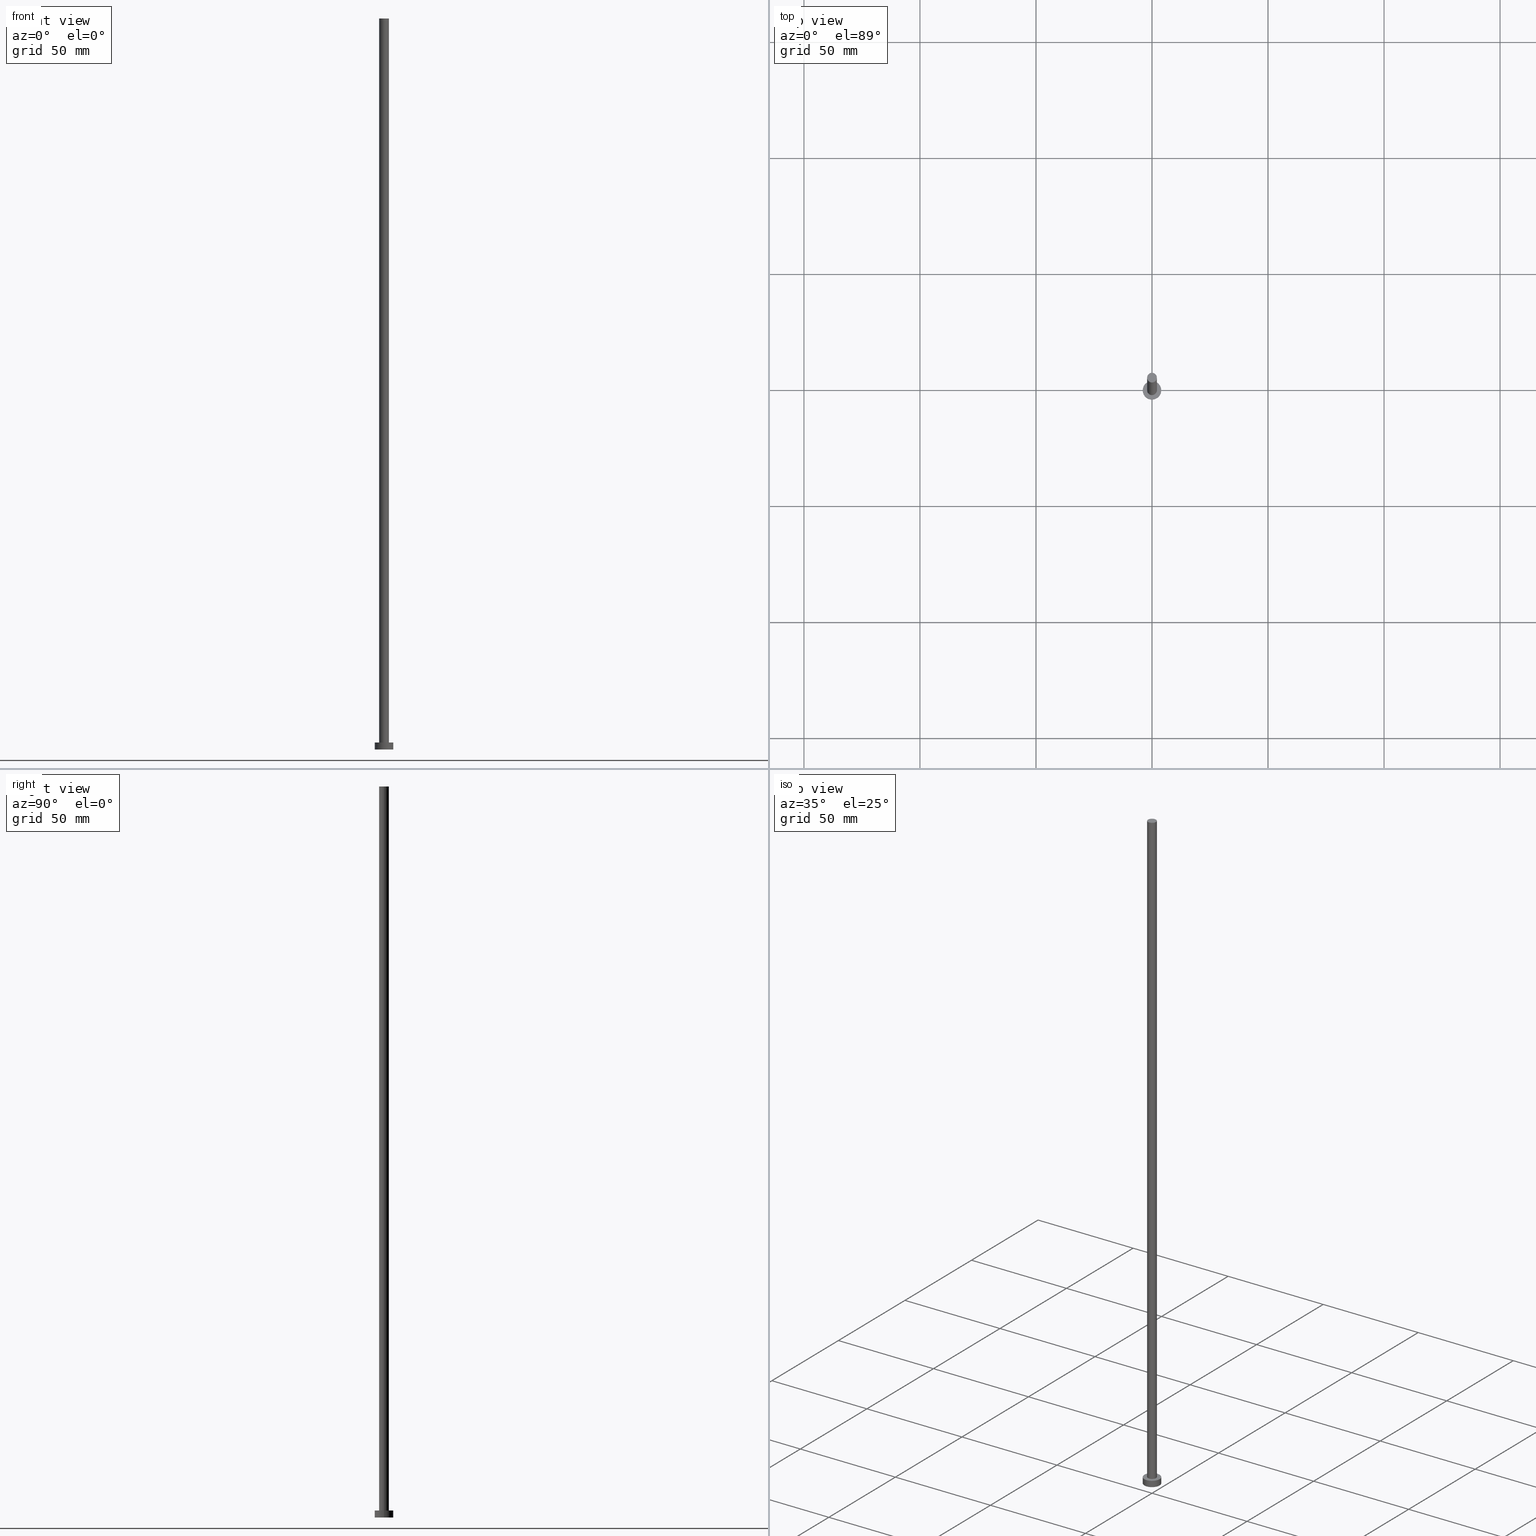
[diagram: canonical four-view strip — front | top / right | iso, engineering-drawing reading convention]
A machine part, canonical four-view strip (front | top / right | iso — engineering-drawing reading convention). The complete STEP part file that produces these views, byte-faithful:
ISO-10303-21;
HEADER;
FILE_DESCRIPTION (( 'STEP AP203' ),
    '1' );
FILE_NAME ('7c55.STEP',
    '2023-02-12T12:36:27',
    ( '' ),
    ( '' ),
    'SwSTEP 2.0',
    'SolidWorks 2019',
    '' );
FILE_SCHEMA (( 'CONFIG_CONTROL_DESIGN' ));
ENDSEC;

DATA;
#1 = CARTESIAN_POINT ( 'NONE',  ( 0.000000000000000000, 0.000000000000000000, 315.0000000000000000 ) ) ;
#2 = DIRECTION ( 'NONE',  ( -1.000000000000000000, 0.000000000000000000, 0.000000000000000000 ) ) ;
#3 = AXIS2_PLACEMENT_3D ( 'NONE', #19, #181, #69 ) ;
#4 = CARTESIAN_POINT ( 'NONE',  ( 0.000000000000000000, 0.000000000000000000, 0.000000000000000000 ) ) ;
#5 = FACE_OUTER_BOUND ( 'NONE', #53, .T. ) ;
#6 = CC_DESIGN_SECURITY_CLASSIFICATION ( #253, ( #199 ) ) ;
#7 = CIRCLE ( 'NONE', #28, 2.100000000000000089 ) ;
#8 = EDGE_CURVE ( 'NONE', #78, #57, #192, .T. ) ;
#9 = APPLICATION_PROTOCOL_DEFINITION ( 'international standard', 'config_control_design', 1994, #152 ) ;
#10 = DIRECTION ( 'NONE',  ( 1.000000000000000000, 0.000000000000000000, 0.000000000000000000 ) ) ;
#11 = ORIENTED_EDGE ( 'NONE', *, *, #158, .F. ) ;
#12 = APPROVAL ( #52, 'NEUR�EN�' ) ;
#13 = EDGE_LOOP ( 'NONE', ( #98, #241 ) ) ;
#14 = VERTEX_POINT ( 'NONE', #228 ) ;
#15 = FACE_BOUND ( 'NONE', #13, .T. ) ;
#16 = CALENDAR_DATE ( 2023, 12, 2 ) ;
#17 = CYLINDRICAL_SURFACE ( 'NONE', #99, 4.000000000000000000 ) ;
#18 = DIRECTION ( 'NONE',  ( -1.000000000000000000, 0.000000000000000000, 0.000000000000000000 ) ) ;
#19 = CARTESIAN_POINT ( 'NONE',  ( 0.000000000000000000, 0.000000000000000000, 3.000000000000000000 ) ) ;
#20 = PLANE ( 'NONE',  #75 ) ;
#21 = CLOSED_SHELL ( 'NONE', ( #237, #138, #106, #92, #201, #144, #163 ) ) ;
#22 = LOCAL_TIME ( 13, 36, 27.00000000000000000, #94 ) ;
#23 = CARTESIAN_POINT ( 'NONE',  ( 4.000000000000000000, 4.898587196589412829E-16, 3.000000000000000000 ) ) ;
#24 = CC_DESIGN_PERSON_AND_ORGANIZATION_ASSIGNMENT ( #38, #245, ( #125 ) ) ;
#25 = COORDINATED_UNIVERSAL_TIME_OFFSET ( 1, 0, .AHEAD. ) ;
#26 = ORIENTED_EDGE ( 'NONE', *, *, #155, .T. ) ;
#27 = UNCERTAINTY_MEASURE_WITH_UNIT (LENGTH_MEASURE( 1.000000000000000082E-05 ), #220, 'distance_accuracy_value', 'NONE');
#28 = AXIS2_PLACEMENT_3D ( 'NONE', #50, #46, #86 ) ;
#29 = AXIS2_PLACEMENT_3D ( 'NONE', #232, #238, #89 ) ;
#30 = ORIENTED_EDGE ( 'NONE', *, *, #158, .T. ) ;
#31 = APPROVAL ( #34, 'NEUR�EN�' ) ;
#32 = PERSON_AND_ORGANIZATION ( #74, #115 ) ;
#33 = LINE ( 'NONE', #108, #45 ) ;
#34 = APPROVAL_STATUS ( 'not_yet_approved' ) ;
#35 = VERTEX_POINT ( 'NONE', #132 ) ;
#36 = LOCAL_TIME ( 13, 36, 27.00000000000000000, #156 ) ;
#37 = CIRCLE ( 'NONE', #79, 4.000000000000000000 ) ;
#38 = PERSON_AND_ORGANIZATION ( #74, #115 ) ;
#39 = CARTESIAN_POINT ( 'NONE',  ( -2.100000000000000089, 0.000000000000000000, 3.000000000000000000 ) ) ;
#40 = PERSON_AND_ORGANIZATION ( #74, #115 ) ;
#41 = DIRECTION ( 'NONE',  ( -0.000000000000000000, -0.000000000000000000, -1.000000000000000000 ) ) ;
#42 = PERSON_AND_ORGANIZATION ( #74, #115 ) ;
#43 = DIRECTION ( 'NONE',  ( 1.000000000000000000, 0.000000000000000000, 0.000000000000000000 ) ) ;
#44 = CIRCLE ( 'NONE', #187, 2.100000000000000089 ) ;
#45 = VECTOR ( 'NONE', #191, 1000.000000000000000 ) ;
#46 = DIRECTION ( 'NONE',  ( 0.000000000000000000, 0.000000000000000000, 1.000000000000000000 ) ) ;
#47 = CYLINDRICAL_SURFACE ( 'NONE', #145, 2.100000000000000089 ) ;
#48 = DIRECTION ( 'NONE',  ( 1.000000000000000000, 0.000000000000000000, 0.000000000000000000 ) ) ;
#49 = EDGE_CURVE ( 'NONE', #14, #225, #110, .T. ) ;
#50 = CARTESIAN_POINT ( 'NONE',  ( 0.000000000000000000, 0.000000000000000000, 3.000000000000000000 ) ) ;
#51 = EDGE_LOOP ( 'NONE', ( #54, #30 ) ) ;
#52 = APPROVAL_STATUS ( 'not_yet_approved' ) ;
#53 = EDGE_LOOP ( 'NONE', ( #193, #213, #177, #190 ) ) ;
#54 = ORIENTED_EDGE ( 'NONE', *, *, #189, .T. ) ;
#55 = ORIENTED_EDGE ( 'NONE', *, *, #249, .T. ) ;
#56 = ORIENTED_EDGE ( 'NONE', *, *, #102, .F. ) ;
#57 = VERTEX_POINT ( 'NONE', #39 ) ;
#58 = CC_DESIGN_APPROVAL ( #31, ( #199 ) ) ;
#59 = AXIS2_PLACEMENT_3D ( 'NONE', #128, #208, #212 ) ;
#60 = PERSON_AND_ORGANIZATION_ROLE ( 'creator' ) ;
#61 = CC_DESIGN_APPROVAL ( #117, ( #246 ) ) ;
#62 = ADVANCED_BREP_SHAPE_REPRESENTATION ( '7c55', ( #159, #105 ), #167 ) ;
#63 = ORIENTED_EDGE ( 'NONE', *, *, #186, .F. ) ;
#64 = PERSON_AND_ORGANIZATION ( #74, #115 ) ;
#65 = CARTESIAN_POINT ( 'NONE',  ( 4.000000000000000000, 4.898587196589412829E-16, 3.000000000000000000 ) ) ;
#66 = CC_DESIGN_PERSON_AND_ORGANIZATION_ASSIGNMENT ( #32, #60, ( #246 ) ) ;
#67 = AXIS2_PLACEMENT_3D ( 'NONE', #119, #195, #43 ) ;
#68 = CIRCLE ( 'NONE', #67, 4.000000000000000000 ) ;
#69 = DIRECTION ( 'NONE',  ( 1.000000000000000000, 0.000000000000000000, -0.000000000000000000 ) ) ;
#70 = DIRECTION ( 'NONE',  ( -0.000000000000000000, -0.000000000000000000, -1.000000000000000000 ) ) ;
#71 = EDGE_CURVE ( 'NONE', #35, #109, #33, .T. ) ;
#72 = DIRECTION ( 'NONE',  ( 1.000000000000000000, 0.000000000000000000, -0.000000000000000000 ) ) ;
#73 = APPROVAL_DATE_TIME ( #168, #12 ) ;
#74 = PERSON ( 'NEUR�EN�', 'NEUR�EN�', 'NEUR�EN�', ('NEUR�EN�'), ('NEUR�EN�'), ('NEUR�EN�') ) ;
#75 = AXIS2_PLACEMENT_3D ( 'NONE', #84, #164, #236 ) ;
#76 = EDGE_LOOP ( 'NONE', ( #227, #207, #26, #83 ) ) ;
#77 = APPROVAL_ROLE ( '' ) ;
#78 = VERTEX_POINT ( 'NONE', #112 ) ;
#79 = AXIS2_PLACEMENT_3D ( 'NONE', #196, #114, #143 ) ;
#80 = COORDINATED_UNIVERSAL_TIME_OFFSET ( 1, 0, .AHEAD. ) ;
#81 = DATE_AND_TIME ( #172, #205 ) ;
#82 = PERSON_AND_ORGANIZATION_ROLE ( 'design_supplier' ) ;
#83 = ORIENTED_EDGE ( 'NONE', *, *, #186, .T. ) ;
#84 = CARTESIAN_POINT ( 'NONE',  ( 0.000000000000000000, 0.000000000000000000, 0.000000000000000000 ) ) ;
#85 = DIRECTION ( 'NONE',  ( 0.000000000000000000, 0.000000000000000000, 1.000000000000000000 ) ) ;
#86 = DIRECTION ( 'NONE',  ( 1.000000000000000000, 0.000000000000000000, 0.000000000000000000 ) ) ;
#87 = DIRECTION ( 'NONE',  ( 1.000000000000000000, 0.000000000000000000, 0.000000000000000000 ) ) ;
#88 = CARTESIAN_POINT ( 'NONE',  ( 0.000000000000000000, 0.000000000000000000, 3.000000000000000000 ) ) ;
#89 = DIRECTION ( 'NONE',  ( -1.000000000000000000, 0.000000000000000000, 0.000000000000000000 ) ) ;
#90 = DIRECTION ( 'NONE',  ( 0.000000000000000000, 0.000000000000000000, 1.000000000000000000 ) ) ;
#91 = ORIENTED_EDGE ( 'NONE', *, *, #49, .T. ) ;
#92 = ADVANCED_FACE ( 'NONE', ( #15, #96 ), #93, .T. ) ;
#93 = PLANE ( 'NONE',  #3 ) ;
#94 = COORDINATED_UNIVERSAL_TIME_OFFSET ( 1, 0, .AHEAD. ) ;
#95 = DATE_AND_TIME ( #178, #22 ) ;
#96 = FACE_OUTER_BOUND ( 'NONE', #248, .T. ) ;
#97 = DATE_AND_TIME ( #16, #36 ) ;
#98 = ORIENTED_EDGE ( 'NONE', *, *, #131, .F. ) ;
#99 = AXIS2_PLACEMENT_3D ( 'NONE', #216, #101, #198 ) ;
#100 = DIRECTION ( 'NONE',  ( -0.000000000000000000, -0.000000000000000000, -1.000000000000000000 ) ) ;
#101 = DIRECTION ( 'NONE',  ( -0.000000000000000000, -0.000000000000000000, -1.000000000000000000 ) ) ;
#102 = EDGE_CURVE ( 'NONE', #225, #14, #68, .T. ) ;
#103 = CYLINDRICAL_SURFACE ( 'NONE', #203, 4.000000000000000000 ) ;
#104 = DIRECTION ( 'NONE',  ( 0.000000000000000000, 0.000000000000000000, 1.000000000000000000 ) ) ;
#105 = AXIS2_PLACEMENT_3D ( 'NONE', #222, #90, #10 ) ;
#106 = ADVANCED_FACE ( 'NONE', ( #185 ), #103, .T. ) ;
#107 = DATE_AND_TIME ( #206, #123 ) ;
#108 = CARTESIAN_POINT ( 'NONE',  ( 2.100000000000000089, 2.571758278209441957E-16, 315.0000000000000000 ) ) ;
#109 = VERTEX_POINT ( 'NONE', #142 ) ;
#110 = CIRCLE ( 'NONE', #59, 4.000000000000000000 ) ;
#111 = APPROVAL_STATUS ( 'not_yet_approved' ) ;
#112 = CARTESIAN_POINT ( 'NONE',  ( -2.100000000000000089, 0.000000000000000000, 315.0000000000000000 ) ) ;
#113 = PERSON_AND_ORGANIZATION ( #74, #115 ) ;
#114 = DIRECTION ( 'NONE',  ( 0.000000000000000000, 0.000000000000000000, 1.000000000000000000 ) ) ;
#115 = ORGANIZATION ( 'NEUR�EN�', 'NEUR�EN�', '' ) ;
#116 = LINE ( 'NONE', #234, #127 ) ;
#117 = APPROVAL ( #111, 'NEUR�EN�' ) ;
#118 = FACE_OUTER_BOUND ( 'NONE', #51, .T. ) ;
#119 = CARTESIAN_POINT ( 'NONE',  ( 0.000000000000000000, 0.000000000000000000, 3.000000000000000000 ) ) ;
#120 = AXIS2_PLACEMENT_3D ( 'NONE', #88, #104, #221 ) ;
#121 = DIRECTION ( 'NONE',  ( 0.000000000000000000, 0.000000000000000000, 1.000000000000000000 ) ) ;
#122 =( NAMED_UNIT ( * ) PLANE_ANGLE_UNIT ( ) SI_UNIT ( $, .RADIAN. ) );
#123 = LOCAL_TIME ( 13, 36, 27.00000000000000000, #80 ) ;
#124 = CIRCLE ( 'NONE', #161, 4.000000000000000000 ) ;
#125 = PRODUCT ( '7c55', '7c55', '', ( #171 ) ) ;
#126 = EDGE_LOOP ( 'NONE', ( #63, #209 ) ) ;
#127 = VECTOR ( 'NONE', #180, 1000.000000000000000 ) ;
#128 = CARTESIAN_POINT ( 'NONE',  ( 0.000000000000000000, 0.000000000000000000, 3.000000000000000000 ) ) ;
#129 = APPROVAL_DATE_TIME ( #95, #117 ) ;
#130 = EDGE_LOOP ( 'NONE', ( #11, #147, #55, #224 ) ) ;
#131 = EDGE_CURVE ( 'NONE', #57, #109, #7, .T. ) ;
#132 = CARTESIAN_POINT ( 'NONE',  ( 2.100000000000000089, 2.571758278209441957E-16, 315.0000000000000000 ) ) ;
#133 = PRODUCT_RELATED_PRODUCT_CATEGORY ( 'detail', '', ( #125 ) ) ;
#134 = COORDINATED_UNIVERSAL_TIME_OFFSET ( 1, 0, .AHEAD. ) ;
#135 = VERTEX_POINT ( 'NONE', #139 ) ;
#136 = SECURITY_CLASSIFICATION_LEVEL ( 'unclassified' ) ;
#137 = FACE_OUTER_BOUND ( 'NONE', #130, .T. ) ;
#138 = ADVANCED_FACE ( 'NONE', ( #219 ), #17, .T. ) ;
#139 = CARTESIAN_POINT ( 'NONE',  ( 4.000000000000000000, 4.898587196589412829E-16, 0.000000000000000000 ) ) ;
#140 = CC_DESIGN_APPROVAL ( #12, ( #253 ) ) ;
#141 = DIRECTION ( 'NONE',  ( 1.000000000000000000, 0.000000000000000000, 0.000000000000000000 ) ) ;
#142 = CARTESIAN_POINT ( 'NONE',  ( 2.100000000000000089, 2.571758278209441957E-16, 3.000000000000000000 ) ) ;
#143 = DIRECTION ( 'NONE',  ( 1.000000000000000000, 0.000000000000000000, 0.000000000000000000 ) ) ;
#144 = ADVANCED_FACE ( 'NONE', ( #5 ), #47, .T. ) ;
#145 = AXIS2_PLACEMENT_3D ( 'NONE', #162, #70, #18 ) ;
#146 = SHAPE_DEFINITION_REPRESENTATION ( #244, #62 ) ;
#147 = ORIENTED_EDGE ( 'NONE', *, *, #71, .T. ) ;
#148 = EDGE_LOOP ( 'NONE', ( #56, #169, #250, #150 ) ) ;
#149 = DATE_TIME_ROLE ( 'creation_date' ) ;
#150 = ORIENTED_EDGE ( 'NONE', *, *, #155, .F. ) ;
#151 = APPROVAL_DATE_TIME ( #107, #31 ) ;
#152 = APPLICATION_CONTEXT ( 'configuration controlled 3d designs of mechanical parts and assemblies' ) ;
#153 = AXIS2_PLACEMENT_3D ( 'NONE', #1, #85, #141 ) ;
#154 = APPLICATION_PROTOCOL_DEFINITION ( 'international standard', 'config_control_design', 1994, #243 ) ;
#155 = EDGE_CURVE ( 'NONE', #14, #175, #116, .T. ) ;
#156 = COORDINATED_UNIVERSAL_TIME_OFFSET ( 1, 0, .AHEAD. ) ;
#157 = PLANE ( 'NONE',  #188 ) ;
#158 = EDGE_CURVE ( 'NONE', #35, #78, #226, .T. ) ;
#159 = MANIFOLD_SOLID_BREP ( 'P�idat vysunut�m3', #21 ) ;
#160 = CARTESIAN_POINT ( 'NONE',  ( 0.000000000000000000, 0.000000000000000000, 315.0000000000000000 ) ) ;
#161 = AXIS2_PLACEMENT_3D ( 'NONE', #4, #218, #87 ) ;
#162 = CARTESIAN_POINT ( 'NONE',  ( 0.000000000000000000, 0.000000000000000000, 315.0000000000000000 ) ) ;
#163 = ADVANCED_FACE ( 'NONE', ( #118 ), #157, .T. ) ;
#164 = DIRECTION ( 'NONE',  ( 0.000000000000000000, 0.000000000000000000, 1.000000000000000000 ) ) ;
#165 = CC_DESIGN_PERSON_AND_ORGANIZATION_ASSIGNMENT ( #214, #252, ( #199 ) ) ;
#166 = APPROVAL_ROLE ( '' ) ;
#167 =( GEOMETRIC_REPRESENTATION_CONTEXT ( 3 ) GLOBAL_UNCERTAINTY_ASSIGNED_CONTEXT ( ( #27 ) ) GLOBAL_UNIT_ASSIGNED_CONTEXT ( ( #220, #122, #170 ) ) REPRESENTATION_CONTEXT ( 'NONE', 'WORKASPACE' ) );
#168 = DATE_AND_TIME ( #239, #182 ) ;
#169 = ORIENTED_EDGE ( 'NONE', *, *, #233, .T. ) ;
#170 =( NAMED_UNIT ( * ) SI_UNIT ( $, .STERADIAN. ) SOLID_ANGLE_UNIT ( ) );
#171 = MECHANICAL_CONTEXT ( 'NONE', #152, 'mechanical' ) ;
#172 = CALENDAR_DATE ( 2023, 12, 2 ) ;
#173 = CARTESIAN_POINT ( 'NONE',  ( -2.100000000000000089, 0.000000000000000000, 315.0000000000000000 ) ) ;
#174 = EDGE_CURVE ( 'NONE', #135, #175, #124, .T. ) ;
#175 = VERTEX_POINT ( 'NONE', #197 ) ;
#176 = VECTOR ( 'NONE', #41, 1000.000000000000000 ) ;
#177 = ORIENTED_EDGE ( 'NONE', *, *, #8, .T. ) ;
#178 = CALENDAR_DATE ( 2023, 12, 2 ) ;
#179 = PERSON_AND_ORGANIZATION ( #74, #115 ) ;
#180 = DIRECTION ( 'NONE',  ( -0.000000000000000000, -0.000000000000000000, -1.000000000000000000 ) ) ;
#181 = DIRECTION ( 'NONE',  ( 0.000000000000000000, 0.000000000000000000, 1.000000000000000000 ) ) ;
#182 = LOCAL_TIME ( 13, 36, 27.00000000000000000, #25 ) ;
#183 = DIRECTION ( 'NONE',  ( -0.000000000000000000, -0.000000000000000000, -1.000000000000000000 ) ) ;
#184 = CC_DESIGN_PERSON_AND_ORGANIZATION_ASSIGNMENT ( #64, #82, ( #199 ) ) ;
#185 = FACE_OUTER_BOUND ( 'NONE', #76, .T. ) ;
#186 = EDGE_CURVE ( 'NONE', #175, #135, #37, .T. ) ;
#187 = AXIS2_PLACEMENT_3D ( 'NONE', #255, #121, #48 ) ;
#188 = AXIS2_PLACEMENT_3D ( 'NONE', #160, #217, #72 ) ;
#189 = EDGE_CURVE ( 'NONE', #78, #35, #44, .T. ) ;
#190 = ORIENTED_EDGE ( 'NONE', *, *, #131, .T. ) ;
#191 = DIRECTION ( 'NONE',  ( -0.000000000000000000, -0.000000000000000000, -1.000000000000000000 ) ) ;
#192 = LINE ( 'NONE', #173, #176 ) ;
#193 = ORIENTED_EDGE ( 'NONE', *, *, #71, .F. ) ;
#194 = PERSON_AND_ORGANIZATION_ROLE ( 'classification_officer' ) ;
#195 = DIRECTION ( 'NONE',  ( 0.000000000000000000, 0.000000000000000000, 1.000000000000000000 ) ) ;
#196 = CARTESIAN_POINT ( 'NONE',  ( 0.000000000000000000, 0.000000000000000000, 0.000000000000000000 ) ) ;
#197 = CARTESIAN_POINT ( 'NONE',  ( -4.000000000000000000, 0.000000000000000000, 0.000000000000000000 ) ) ;
#198 = DIRECTION ( 'NONE',  ( -1.000000000000000000, 0.000000000000000000, 0.000000000000000000 ) ) ;
#199 = PRODUCT_DEFINITION_FORMATION_WITH_SPECIFIED_SOURCE ( 'LIBOVOLN�', '', #125, .NOT_KNOWN. ) ;
#200 = LINE ( 'NONE', #23, #211 ) ;
#201 = ADVANCED_FACE ( 'NONE', ( #231 ), #20, .F. ) ;
#202 = APPROVAL_PERSON_ORGANIZATION ( #179, #12, #166 ) ;
#203 = AXIS2_PLACEMENT_3D ( 'NONE', #235, #183, #2 ) ;
#204 = DESIGN_CONTEXT ( 'detailed design', #243, 'design' ) ;
#205 = LOCAL_TIME ( 13, 36, 27.00000000000000000, #134 ) ;
#206 = CALENDAR_DATE ( 2023, 12, 2 ) ;
#207 = ORIENTED_EDGE ( 'NONE', *, *, #49, .F. ) ;
#208 = DIRECTION ( 'NONE',  ( 0.000000000000000000, 0.000000000000000000, 1.000000000000000000 ) ) ;
#209 = ORIENTED_EDGE ( 'NONE', *, *, #174, .F. ) ;
#210 = APPROVAL_PERSON_ORGANIZATION ( #113, #31, #247 ) ;
#211 = VECTOR ( 'NONE', #100, 1000.000000000000000 ) ;
#212 = DIRECTION ( 'NONE',  ( 1.000000000000000000, 0.000000000000000000, 0.000000000000000000 ) ) ;
#213 = ORIENTED_EDGE ( 'NONE', *, *, #189, .F. ) ;
#214 = PERSON_AND_ORGANIZATION ( #74, #115 ) ;
#215 = CYLINDRICAL_SURFACE ( 'NONE', #29, 2.100000000000000089 ) ;
#216 = CARTESIAN_POINT ( 'NONE',  ( 0.000000000000000000, 0.000000000000000000, 3.000000000000000000 ) ) ;
#217 = DIRECTION ( 'NONE',  ( 0.000000000000000000, 0.000000000000000000, 1.000000000000000000 ) ) ;
#218 = DIRECTION ( 'NONE',  ( 0.000000000000000000, 0.000000000000000000, 1.000000000000000000 ) ) ;
#219 = FACE_OUTER_BOUND ( 'NONE', #148, .T. ) ;
#220 =( LENGTH_UNIT ( ) NAMED_UNIT ( * ) SI_UNIT ( .MILLI., .METRE. ) );
#221 = DIRECTION ( 'NONE',  ( 1.000000000000000000, 0.000000000000000000, 0.000000000000000000 ) ) ;
#222 = CARTESIAN_POINT ( 'NONE',  ( 0.000000000000000000, 0.000000000000000000, 0.000000000000000000 ) ) ;
#223 = CC_DESIGN_PERSON_AND_ORGANIZATION_ASSIGNMENT ( #42, #194, ( #253 ) ) ;
#224 = ORIENTED_EDGE ( 'NONE', *, *, #8, .F. ) ;
#225 = VERTEX_POINT ( 'NONE', #65 ) ;
#226 = CIRCLE ( 'NONE', #153, 2.100000000000000089 ) ;
#227 = ORIENTED_EDGE ( 'NONE', *, *, #233, .F. ) ;
#228 = CARTESIAN_POINT ( 'NONE',  ( -4.000000000000000000, 0.000000000000000000, 3.000000000000000000 ) ) ;
#229 = CC_DESIGN_DATE_AND_TIME_ASSIGNMENT ( #81, #149, ( #246 ) ) ;
#230 = DATE_TIME_ROLE ( 'classification_date' ) ;
#231 = FACE_OUTER_BOUND ( 'NONE', #126, .T. ) ;
#232 = CARTESIAN_POINT ( 'NONE',  ( 0.000000000000000000, 0.000000000000000000, 315.0000000000000000 ) ) ;
#233 = EDGE_CURVE ( 'NONE', #225, #135, #200, .T. ) ;
#234 = CARTESIAN_POINT ( 'NONE',  ( -4.000000000000000000, 0.000000000000000000, 3.000000000000000000 ) ) ;
#235 = CARTESIAN_POINT ( 'NONE',  ( 0.000000000000000000, 0.000000000000000000, 3.000000000000000000 ) ) ;
#236 = DIRECTION ( 'NONE',  ( 1.000000000000000000, 0.000000000000000000, -0.000000000000000000 ) ) ;
#237 = ADVANCED_FACE ( 'NONE', ( #137 ), #215, .T. ) ;
#238 = DIRECTION ( 'NONE',  ( -0.000000000000000000, -0.000000000000000000, -1.000000000000000000 ) ) ;
#239 = CALENDAR_DATE ( 2023, 12, 2 ) ;
#240 = CIRCLE ( 'NONE', #120, 2.100000000000000089 ) ;
#241 = ORIENTED_EDGE ( 'NONE', *, *, #249, .F. ) ;
#242 = APPROVAL_PERSON_ORGANIZATION ( #40, #117, #77 ) ;
#243 = APPLICATION_CONTEXT ( 'configuration controlled 3d designs of mechanical parts and assemblies' ) ;
#244 = PRODUCT_DEFINITION_SHAPE ( 'NONE', 'NONE',  #246 ) ;
#245 = PERSON_AND_ORGANIZATION_ROLE ( 'design_owner' ) ;
#246 = PRODUCT_DEFINITION ( 'NEZN�M�', '', #199, #204 ) ;
#247 = APPROVAL_ROLE ( '' ) ;
#248 = EDGE_LOOP ( 'NONE', ( #91, #254 ) ) ;
#249 = EDGE_CURVE ( 'NONE', #109, #57, #240, .T. ) ;
#250 = ORIENTED_EDGE ( 'NONE', *, *, #174, .T. ) ;
#251 = CC_DESIGN_DATE_AND_TIME_ASSIGNMENT ( #97, #230, ( #253 ) ) ;
#252 = PERSON_AND_ORGANIZATION_ROLE ( 'creator' ) ;
#253 = SECURITY_CLASSIFICATION ( '', '', #136 ) ;
#254 = ORIENTED_EDGE ( 'NONE', *, *, #102, .T. ) ;
#255 = CARTESIAN_POINT ( 'NONE',  ( 0.000000000000000000, 0.000000000000000000, 315.0000000000000000 ) ) ;
ENDSEC;
END-ISO-10303-21;
